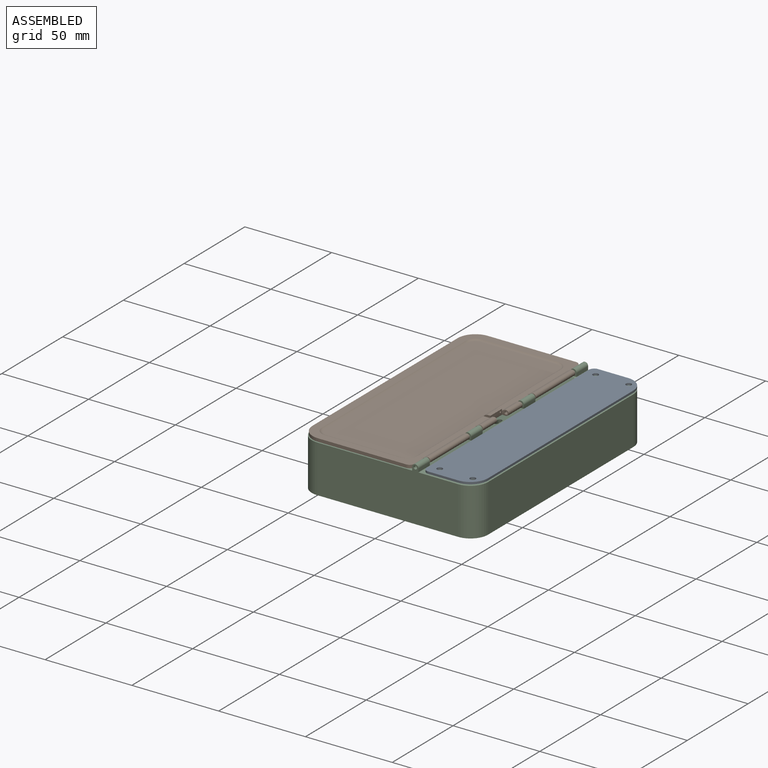
[diagram: assembled view]
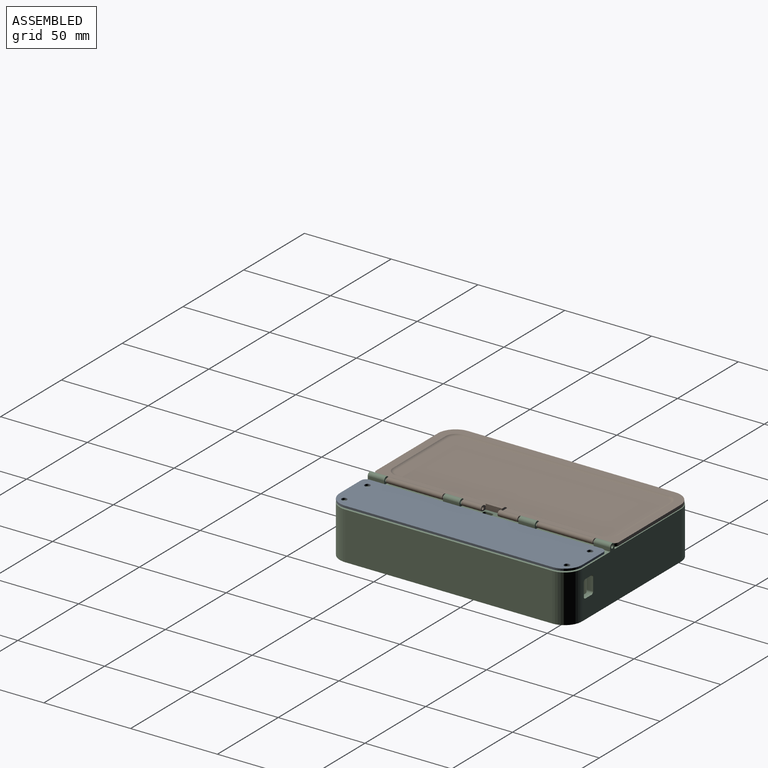
[diagram: assembled view, second angle]
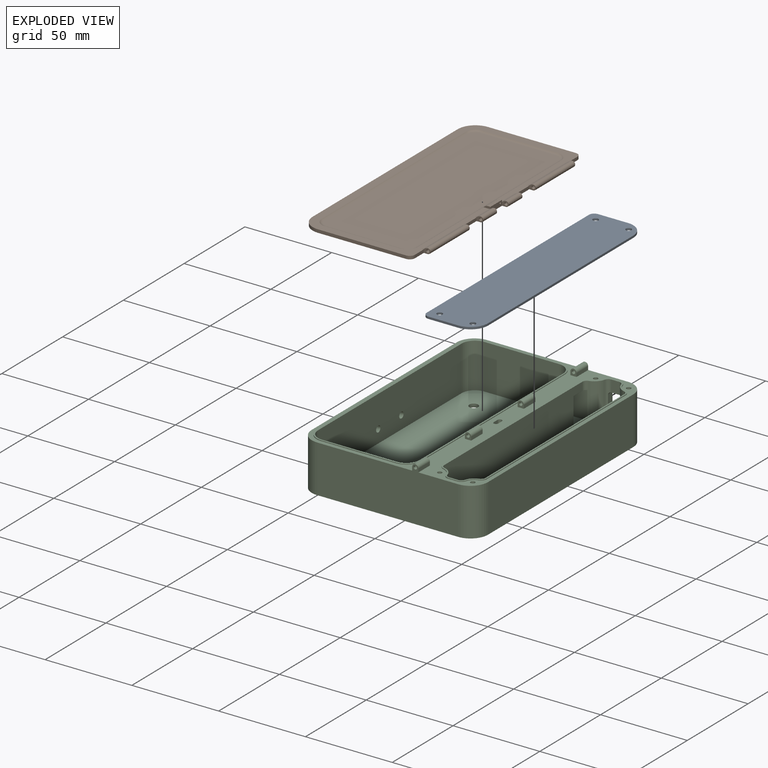
[diagram: exploded view]
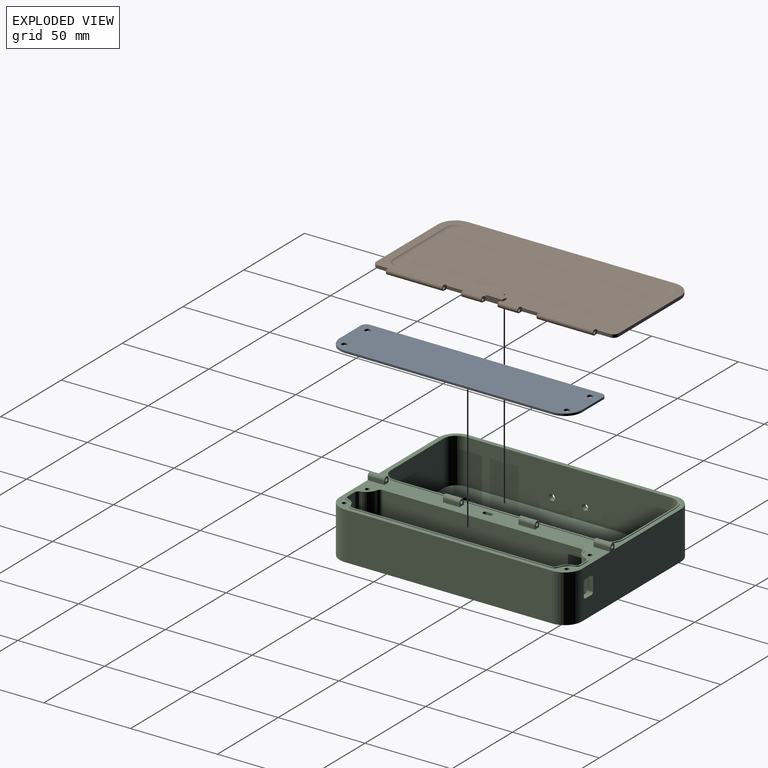
[diagram: exploded view, second angle]
ASSEMBLY  parts=3 mates=2
PART A: 31 faces, bbox 30.5x139.7x2.8 mm
  f0: plane 139.7x30.48mm, normal (0,0,-1), area 1604.4mm2, adj f1,f2,f3,f4,f5,f6,f7,f8
  f1: plane 133.6x1.21mm, normal (-1,0,0), area 161.7mm2, adj f0,f11,f29,f30
  f2: plane 17.27x1.21mm, normal (0,-1,0), area 20.9mm2, adj f0,f3,f11,f30
  f3: cylinder r=10.16mm len=10.16mm, axis (0,0,-1), area 19.3mm2, adj f0,f2,f4,f11
  f4: plane 119.38x1.21mm, normal (1,0,0), area 144.4mm2, adj f0,f3,f5,f11
  f5: cylinder r=10.16mm len=10.16mm, axis (0,0,-1), area 19.3mm2, adj f0,f4,f10,f11
  f6: cylinder r=1.59mm len=3.18mm, axis (0,0,-1), area 12.1mm2, adj f0,f11
  f7: cylinder r=1.59mm len=3.18mm, axis (0,0,-1), area 12.1mm2, adj f0,f11
  f8: cylinder r=1.59mm len=3.18mm, axis (0,0,-1), area 12.1mm2, adj f0,f11
  f9: cylinder r=1.59mm len=3.18mm, axis (0,0,-1), area 12.1mm2, adj f0,f11
  f10: plane 17.27x1.21mm, normal (0,1,0), area 20.9mm2, adj f0,f5,f11,f29
  f11: plane 139.7x30.48mm, normal (0,0,1), area 4178.1mm2, adj f1,f2,f3,f4,f5,f6,f7,f8
  f12: cylinder r=0.95mm len=1.61mm, axis (0,0,1), area 2mm2, adj f0,f13,f27,f28
  f13: cylinder r=9.21mm len=6.61mm, axis (0,0,1), area 15.8mm2, adj f0,f12,f14,f28
  f14: cylinder r=0.95mm len=1.61mm, axis (0,0,1), area 2mm2, adj f0,f13,f15,f28
  f15: plane 4.46x1.61mm, normal (0,1,0), area 7.2mm2, adj f0,f14,f16,f28
  f16: cylinder r=0.95mm len=1.61mm, axis (0,0,1), area 2mm2, adj f0,f15,f17,f28
  f17: cylinder r=9.21mm len=6.61mm, axis (0,0,1), area 15.8mm2, adj f0,f16,f18,f28
  f18: cylinder r=0.95mm len=1.61mm, axis (0,0,1), area 2mm2, adj f0,f17,f19,f28
  f19: plane 113.68x1.61mm, normal (-1,0,0), area 183mm2, adj f0,f18,f20,f28
  f20: cylinder r=0.95mm len=1.61mm, axis (0,0,1), area 2mm2, adj f0,f19,f21,f28
  f21: cylinder r=9.21mm len=6.61mm, axis (0,0,1), area 15.8mm2, adj f0,f20,f22,f28
  f22: cylinder r=0.95mm len=1.61mm, axis (0,0,1), area 2mm2, adj f0,f21,f23,f28
  f23: plane 5.11x1.61mm, normal (0,-1,0), area 8.2mm2, adj f0,f22,f24,f28
  f24: cylinder r=0.95mm len=1.61mm, axis (0,0,1), area 2mm2, adj f0,f23,f25,f28
  f25: cylinder r=8.57mm len=5.98mm, axis (0,0,1), area 14.2mm2, adj f0,f24,f26,f28
  f26: cylinder r=0.95mm len=1.61mm, axis (0,0,1), area 2mm2, adj f0,f25,f27,f28
  f27: plane 114.33x1.61mm, normal (1,0,0), area 184.1mm2, adj f0,f12,f26,f28
  f28: plane 130.18x20.96mm, normal (0,0,-1), area 2573.7mm2, adj f12,f13,f14,f15,f16,f17,f18,f19
  f29: cylinder r=3.05mm len=3.05mm, axis (0,0,1), area 5.8mm2, adj f0,f1,f10,f11
  f30: cylinder r=3.05mm len=3.05mm, axis (0,0,-1), area 5.8mm2, adj f0,f1,f2,f11
PART B: 53 faces, bbox 67.7x139.7x3 mm
  f0: plane 9.53x2.08mm, normal (1,0,0), area 19.2mm2, adj f5,f6,f20,f47,f51,f52
  f1: plane 9.53x0.98mm, normal (1,0,0), area 9.1mm2, adj f22,f23,f24,f47,f51
  f2: cylinder r=2.73mm len=11.4mm, axis (0,-1,0), area 21.8mm2, adj f3,f6,f35,f47
  f3: plane 4.92x3.05mm, normal (0,1,0), area 7.4mm2, adj f2,f12,f19,f20,f30,f35,f47
  f4: plane 4.92x3.05mm, normal (0,-1,0), area 7.4mm2, adj f11,f19,f20,f31,f32,f36,f47
  f5: plane 3.78x3.05mm, normal (0,1,0), area 7.3mm2, adj f0,f20,f31,f32,f36,f47
  f6: plane 3.78x3.05mm, normal (0,-1,0), area 7.3mm2, adj f0,f2,f20,f30,f35,f47
  f7: plane 4.92x3.05mm, normal (0,1,0), area 7.4mm2, adj f11,f19,f20,f28,f29,f34,f38
  f8: plane 4.92x3.05mm, normal (0,1,0), area 7.4mm2, adj f10,f19,f20,f26,f27,f33,f37
  f9: plane 4.92x3.05mm, normal (0,-1,0), area 7.4mm2, adj f12,f19,f20,f26,f27,f33,f37
  f10: plane 7.24x1.81mm, normal (1,0,0), area 13.1mm2, adj f8,f19,f20,f49
  f11: plane 11.05x1.81mm, normal (1,0,0), area 20mm2, adj f4,f7,f19,f20
  f12: plane 11.05x1.81mm, normal (1,0,0), area 20mm2, adj f3,f9,f19,f20
  f13: plane 7.24x1.81mm, normal (1,0,0), area 13.1mm2, adj f19,f20,f25,f50
  f14: plane 50.72x1.81mm, normal (0,1,0), area 91.8mm2, adj f15,f19,f20,f49
  f15: cylinder r=10.16mm len=10.16mm, axis (0,0,-1), area 28.9mm2, adj f14,f16,f19,f20
  f16: plane 119.38x1.81mm, normal (-1,0,0), area 216.1mm2, adj f15,f17,f19,f20
  f17: cylinder r=10.16mm len=10.16mm, axis (0,0,-1), area 28.9mm2, adj f16,f18,f19,f20
  f18: plane 50.72x1.81mm, normal (0,-1,0), area 91.8mm2, adj f17,f19,f20,f50
  f19: plane 139.7x63.92mm, normal (0,0,1), area 1609.7mm2, adj f3,f4,f7,f8,f9,f10,f11,f12
  f20: plane 139.7x66.21mm, normal (0,0,-1), area 9082.2mm2, adj f0,f3,f4,f5,f6,f7,f8,f9
  f21: plane 126.77x51.84mm, normal (0,0,1), area 6555.5mm2, adj f39,f40,f41,f42,f43,f44,f45,f46
  f22: plane 3.98x1.24mm, normal (0,1,0), area 3.9mm2, adj f1,f19,f24,f43,f47,f48
  f23: plane 3.98x1.24mm, normal (0,-1,0), area 3.9mm2, adj f1,f19,f24,f43,f47,f48
  f24: plane 9.53x1.48mm, normal (0,0,1), area 14.1mm2, adj f1,f22,f23,f48
  f25: plane 4.92x3.05mm, normal (0,-1,0), area 7.4mm2, adj f13,f19,f20,f28,f29,f34,f38
  f26: cylinder r=0.89mm len=32.34mm, axis (0,-1,0), area 180.7mm2, adj f8,f9
  f27: cylinder r=2.73mm len=32.34mm, axis (0,-1,0), area 61.8mm2, adj f8,f9,f33,f37
  f28: cylinder r=0.89mm len=32.34mm, axis (0,-1,0), area 180.7mm2, adj f7,f25
  f29: cylinder r=2.73mm len=32.34mm, axis (0,-1,0), area 61.8mm2, adj f7,f25,f34,f38
  f30: cylinder r=0.89mm len=11.4mm, axis (0,-1,0), area 63.7mm2, adj f3,f6
  f31: cylinder r=2.73mm len=11.41mm, axis (0,-1,0), area 21.8mm2, adj f4,f5,f36,f47
  f32: cylinder r=0.89mm len=11.41mm, axis (0,-1,0), area 63.8mm2, adj f4,f5
  f33: cylinder r=1.52mm len=32.34mm, axis (0,-1,0), area 154.8mm2, adj f8,f9,f20,f27
  f34: cylinder r=1.52mm len=32.34mm, axis (0,-1,0), area 154.8mm2, adj f7,f20,f25,f29
  f35: cylinder r=1.52mm len=11.4mm, axis (0,-1,0), area 54.6mm2, adj f2,f3,f6,f20
  f36: cylinder r=1.52mm len=11.41mm, axis (0,-1,0), area 54.6mm2, adj f4,f5,f20,f31
  f37: cylinder r=2.54mm len=32.34mm, axis (0,-1,0), area 57.5mm2, adj f8,f9,f19,f27
  f38: cylinder r=2.54mm len=32.34mm, axis (0,-1,0), area 57.5mm2, adj f7,f19,f25,f29
  f39: cylinder r=2.54mm len=43.18mm, axis (-1,0,0), area 77mm2, adj f19,f21,f40,f41
  f40: torus R=4.33mm, axis (0,0,-1), area 14.5mm2, adj f19,f21,f39,f42
  f41: torus R=4.33mm, axis (0,0,-1), area 14.5mm2, adj f19,f21,f39,f43
  f42: cylinder r=2.54mm len=118.11mm, axis (0,-1,0), area 210.5mm2, adj f19,f21,f40,f44
  f43: cylinder r=2.54mm len=118.11mm, axis (0,1,0), area 212.9mm2, adj f19,f21,f22,f23,f41,f45,f48,f51
  f44: torus R=4.33mm, axis (0,0,-1), area 14.5mm2, adj f19,f21,f42,f46
  f45: torus R=4.33mm, axis (0,0,-1), area 14.5mm2, adj f19,f21,f43,f46
  f46: cylinder r=2.54mm len=43.18mm, axis (1,0,0), area 77mm2, adj f19,f21,f44,f45
  f47: cylinder r=2.54mm len=32.34mm, axis (0,-1,0), area 40.8mm2, adj f0,f1,f2,f3,f4,f5,f6,f19
  f48: cylinder r=3.05mm len=9.53mm, axis (0,1,0), area 23.8mm2, adj f22,f23,f24,f43,f51
  f49: cylinder r=3.05mm len=3.05mm, axis (0,0,-1), area 8.7mm2, adj f10,f14,f19,f20
  f50: cylinder r=3.05mm len=3.05mm, axis (0,0,1), area 8.7mm2, adj f13,f18,f19,f20
  f51: cylinder r=0.51mm len=4.61mm, axis (1,0,0), area 12.5mm2, adj f0,f1,f43,f48,f52
  f52: plane 0.99x0.03mm, normal (0,0,-1), area 0mm2, adj f0,f47,f51
PART C: 116 faces, bbox 101.6x139.7x31.2 mm
  f0: plane 81.28x31.22mm, normal (0,1,0), area 2161.1mm2, adj f13,f17,f21,f23,f24,f29,f88,f92
  f1: cylinder r=2.54mm len=25.81mm, axis (0,0,-1), area 69.9mm2, adj f3,f54,f55,f56,f67,f97,f98,f99
  f2: cylinder r=2.54mm len=25.81mm, axis (0,0,-1), area 69.9mm2, adj f3,f54,f55,f66,f67,f100,f101,f102
  f3: plane 6.76x4.46mm, normal (0,-1,0), area 30.1mm2, adj f1,f2,f54,f103
  f4: cylinder r=2.54mm len=25.81mm, axis (0,0,-1), area 43.6mm2, adj f5,f54,f55,f56,f93,f94,f95
  f5: plane 113.68x25.81mm, normal (1,0,0), area 2817.9mm2, adj f4,f54,f55,f57,f94,f95,f96
  f6: plane 118.11x25.81mm, normal (-1,0,0), area 2897.2mm2, adj f76,f77,f78,f84,f94,f95,f96
  f7: plane 3.81x3.56mm, normal (0,-1,0), area 9.2mm2, adj f13,f17,f21,f88,f92
  f8: plane 3.81x3.56mm, normal (0,-1,0), area 9.2mm2, adj f14,f18,f21,f87,f91
  f9: plane 3.81x3.56mm, normal (0,1,0), area 9.2mm2, adj f14,f18,f21,f87,f91
  f10: plane 3.81x3.56mm, normal (0,-1,0), area 9.2mm2, adj f15,f19,f21,f86,f90
  f11: plane 3.81x3.56mm, normal (0,1,0), area 9.2mm2, adj f15,f19,f21,f86,f90
  f12: plane 3.81x3.56mm, normal (0,1,0), area 9.2mm2, adj f16,f20,f21,f85,f89
  f13: plane 9.53x2.03mm, normal (-1,0,0), area 19.4mm2, adj f0,f7,f21,f88
  f14: plane 9.53x2.03mm, normal (-1,0,0), area 19.4mm2, adj f8,f9,f21,f87
  f15: plane 9.53x2.03mm, normal (-1,0,0), area 19.4mm2, adj f10,f11,f21,f86
  f16: plane 9.53x2.03mm, normal (-1,0,0), area 19.4mm2, adj f12,f21,f27,f85
  f17: plane 9.53x2.03mm, normal (1,0,0), area 19.4mm2, adj f0,f7,f21,f88
  f18: plane 9.53x2.03mm, normal (1,0,0), area 19.4mm2, adj f8,f9,f21,f87
  f19: plane 9.53x2.03mm, normal (1,0,0), area 19.4mm2, adj f10,f11,f21,f86
  f20: plane 9.53x2.03mm, normal (1,0,0), area 19.4mm2, adj f12,f21,f27,f85
  f21: plane 139.7x101.6mm, normal (0,0,1), area 2619.7mm2, adj f0,f7,f8,f9,f10,f11,f12,f13
  f22: plane 119.38x27.41mm, normal (1,0,0), area 3272.2mm2, adj f21,f23,f28,f29
  f23: cylinder r=10.16mm len=27.41mm, axis (0,0,-1), area 437.4mm2, adj f0,f21,f22,f29
  f24: cylinder r=10.16mm len=27.41mm, axis (0,0,-1), area 437.4mm2, adj f0,f21,f25,f29
  f25: plane 119.38x27.41mm, normal (-1,0,0), area 3252.3mm2, adj f21,f24,f26,f29,f114,f115
  f26: cylinder r=10.16mm len=27.41mm, axis (0,0,-1), area 437.4mm2, adj f21,f25,f27,f29
  f27: plane 81.28x31.22mm, normal (0,-1,0), area 2237.1mm2, adj f16,f20,f21,f26,f28,f29,f85,f89
  f28: cylinder r=10.16mm len=27.41mm, axis (0,0,-1), area 437.4mm2, adj f21,f22,f27,f29
  f29: plane 139.7x101.6mm, normal (0,0,-1), area 14023.8mm2, adj f0,f22,f23,f24,f25,f26,f27,f28
  f30: cylinder r=1.27mm len=12.7mm, axis (0,0,1), area 101.3mm2, adj f21,f31
  f31: plane 2.54x2.54mm, normal (0,0,1), area 5.1mm2, adj f30
  f32: cylinder r=1.27mm len=12.7mm, axis (0,0,1), area 101.3mm2, adj f21,f33
  f33: plane 2.54x2.54mm, normal (0,0,1), area 5.1mm2, adj f32
  f34: cylinder r=1.27mm len=12.7mm, axis (0,0,1), area 101.3mm2, adj f21,f35
  f35: plane 2.54x2.54mm, normal (0,0,1), area 5.1mm2, adj f34
  f36: cylinder r=1.27mm len=12.7mm, axis (0,0,1), area 101.3mm2, adj f21,f37
  f37: plane 2.54x2.54mm, normal (0,0,1), area 5.1mm2, adj f36
  f38: cylinder r=3.34mm len=3.24mm, axis (0,0,-1), area 1.8mm2, adj f21,f39,f53,f54
  f39: cylinder r=6.81mm len=4.9mm, axis (0,0,-1), area 3mm2, adj f21,f38,f40,f54
  f40: cylinder r=3.34mm len=3.24mm, axis (0,0,-1), area 1.8mm2, adj f21,f39,f41,f54
  f41: plane 113.68x0.41mm, normal (-1,0,0), area 46.6mm2, adj f21,f40,f42,f54
  f42: cylinder r=3.34mm len=3.24mm, axis (0,0,-1), area 1.8mm2, adj f21,f41,f43,f54
  f43: cylinder r=6.81mm len=4.9mm, axis (0,0,-1), area 3mm2, adj f21,f42,f44,f54
  f44: cylinder r=3.34mm len=3.24mm, axis (0,0,-1), area 1.8mm2, adj f21,f43,f45,f54
  f45: plane 5.11x0.41mm, normal (0,-1,0), area 2.1mm2, adj f21,f44,f46,f54
  f46: cylinder r=3.34mm len=3.22mm, axis (0,0,-1), area 1.8mm2, adj f21,f45,f47,f54
  f47: cylinder r=6.18mm len=4.31mm, axis (0,0,-1), area 2.6mm2, adj f21,f46,f48,f54
  f48: cylinder r=3.34mm len=3.22mm, axis (0,0,-1), area 1.8mm2, adj f21,f47,f49,f54
  f49: plane 114.33x0.41mm, normal (1,0,0), area 46.9mm2, adj f21,f48,f50,f54
  f50: cylinder r=3.34mm len=3.24mm, axis (0,0,-1), area 1.8mm2, adj f21,f49,f51,f54
  f51: cylinder r=6.81mm len=4.9mm, axis (0,0,-1), area 3mm2, adj f21,f50,f52,f54
  f52: cylinder r=3.34mm len=3.24mm, axis (0,0,-1), area 1.8mm2, adj f21,f51,f53,f54
  f53: plane 4.46x0.41mm, normal (0,1,0), area 1.8mm2, adj f21,f38,f52,f54
  f54: plane 134.96x25.74mm, normal (0,0,1), area 240.2mm2, adj f1,f2,f3,f4,f5,f38,f39,f40
  f55: plane 133.35x24.13mm, normal (0,0,1), area 2994.9mm2, adj f1,f2,f4,f5,f56,f57,f58,f59
  f56: cylinder r=7.62mm len=25.81mm, axis (0,0,-1), area 209.5mm2, adj f1,f4,f54,f55
  f57: cylinder r=2.54mm len=25.81mm, axis (0,0,-1), area 86.4mm2, adj f5,f54,f55,f59
  f58: cylinder r=2.54mm len=25.81mm, axis (0,0,-1), area 86.4mm2, adj f54,f55,f59,f61
  f59: cylinder r=7.62mm len=25.81mm, axis (0,0,-1), area 209.5mm2, adj f54,f55,f57,f58
  f60: cylinder r=2.54mm len=25.81mm, axis (0,0,-1), area 85.3mm2, adj f54,f55,f61,f63
  f61: plane 25.81x5.11mm, normal (0,1,0), area 132mm2, adj f54,f55,f58,f60
  f62: cylinder r=2.54mm len=25.81mm, axis (0,0,-1), area 85.3mm2, adj f54,f55,f63,f65
  f63: cylinder r=6.99mm len=25.81mm, axis (0,0,-1), area 185.9mm2, adj f54,f55,f60,f62
  f64: cylinder r=2.54mm len=25.81mm, axis (0,0,-1), area 86.4mm2, adj f54,f55,f65,f66
  f65: plane 114.33x25.81mm, normal (-1,0,0), area 2950.9mm2, adj f54,f55,f62,f64
  f66: cylinder r=7.62mm len=25.81mm, axis (0,0,-1), area 209.5mm2, adj f2,f54,f55,f64
  f67: plane 8.89x4.46mm, normal (0,-1,0), area 39.6mm2, adj f1,f2,f55,f104
  f68: plane 43.18x0.41mm, normal (0,1,0), area 17.7mm2, adj f21,f69,f75,f76
  f69: cylinder r=8.43mm len=8.43mm, axis (0,0,-1), area 5.4mm2, adj f21,f68,f70,f76
  f70: plane 118.11x0.41mm, normal (-1,0,0), area 48.4mm2, adj f21,f69,f71,f76
  f71: cylinder r=8.43mm len=8.43mm, axis (0,0,-1), area 5.4mm2, adj f21,f70,f72,f76
  f72: plane 43.18x0.41mm, normal (0,-1,0), area 17.7mm2, adj f21,f71,f73,f76
  f73: cylinder r=8.43mm len=8.43mm, axis (0,0,-1), area 5.4mm2, adj f21,f72,f74,f76
  f74: plane 118.11x0.41mm, normal (1,0,0), area 48.4mm2, adj f21,f73,f75,f76
  f75: cylinder r=8.43mm len=8.43mm, axis (0,0,-1), area 5.4mm2, adj f21,f68,f74,f76
  f76: plane 134.96x60.03mm, normal (0,0,1), area 300.3mm2, adj f6,f68,f69,f70,f71,f72,f73,f74
  f77: plane 133.35x58.42mm, normal (0,0,1), area 7699.9mm2, adj f6,f78,f79,f80,f81,f82,f83,f84
  f78: cylinder r=7.62mm len=25.81mm, axis (0,0,-1), area 308.9mm2, adj f6,f76,f77,f79,f93
  f79: plane 43.18x25.81mm, normal (0,-1,0), area 1114.5mm2, adj f76,f77,f78,f80
  f80: cylinder r=7.62mm len=25.81mm, axis (0,0,-1), area 308.9mm2, adj f76,f77,f79,f81
  f81: plane 118.11x25.81mm, normal (1,0,0), area 3028.6mm2, adj f76,f77,f80,f82,f114,f115
  f82: cylinder r=7.62mm len=25.81mm, axis (0,0,-1), area 308.9mm2, adj f76,f77,f81,f83
  f83: plane 43.18x25.81mm, normal (0,1,0), area 1114.5mm2, adj f76,f77,f82,f84
  f84: cylinder r=7.62mm len=25.81mm, axis (0,0,-1), area 308.9mm2, adj f6,f76,f77,f83
  f85: cylinder r=1.78mm len=9.53mm, axis (0,-1,0), area 53.2mm2, adj f12,f16,f20,f27
  f86: cylinder r=1.78mm len=9.53mm, axis (0,-1,0), area 53.2mm2, adj f10,f11,f15,f19
  f87: cylinder r=1.78mm len=9.53mm, axis (0,-1,0), area 53.2mm2, adj f8,f9,f14,f18
  f88: cylinder r=1.78mm len=9.53mm, axis (0,-1,0), area 53.2mm2, adj f0,f7,f13,f17
  f89: cylinder r=0.97mm len=9.53mm, axis (0,-1,0), area 57.9mm2, adj f12,f27
  f90: cylinder r=0.97mm len=9.53mm, axis (0,-1,0), area 57.9mm2, adj f10,f11
  f91: cylinder r=0.97mm len=9.53mm, axis (0,-1,0), area 57.9mm2, adj f8,f9
  f92: cylinder r=0.97mm len=9.53mm, axis (0,-1,0), area 57.9mm2, adj f0,f7
  f93: plane 15.88x14mm, normal (0,-1,0), area 222.3mm2, adj f4,f78,f94,f95
  f94: plane 14x9.53mm, normal (0,0,-1), area 121.8mm2, adj f4,f5,f6,f93,f96
  f95: plane 14x9.53mm, normal (0,0,1), area 121.8mm2, adj f4,f5,f6,f93,f96
  f96: plane 15.88x12.7mm, normal (0,1,0), area 201.6mm2, adj f5,f6,f94,f95
  f97: plane 7.62x3.73mm, normal (1,0,0), area 28.4mm2, adj f0,f1,f98,f99
  f98: cylinder r=1.27mm len=3.73mm, axis (0,1,0), area 6.9mm2, adj f0,f1,f97,f103
  f99: cylinder r=1.27mm len=3.73mm, axis (0,1,0), area 6.9mm2, adj f0,f1,f97,f104
  f100: cylinder r=1.27mm len=3.73mm, axis (0,1,0), area 6.9mm2, adj f0,f2,f101,f103
  f101: plane 7.62x3.73mm, normal (-1,0,0), area 28.4mm2, adj f0,f2,f100,f102
  f102: cylinder r=1.27mm len=3.73mm, axis (0,1,0), area 6.9mm2, adj f0,f2,f101,f104
  f103: plane 5.08x3.19mm, normal (0,0,-1), area 16.1mm2, adj f0,f1,f2,f3,f98,f100
  f104: plane 5.08x3.19mm, normal (0,0,1), area 16.1mm2, adj f0,f1,f2,f67,f99,f102
  f105: cylinder r=1.27mm len=10.16mm, axis (0,0,1), area 40.5mm2, adj f21,f106,f108,f109
  f106: plane 10.16x3.18mm, normal (-1,0,0), area 32.3mm2, adj f21,f105,f107,f109
  f107: cylinder r=1.27mm len=10.16mm, axis (0,0,1), area 40.5mm2, adj f21,f106,f108,f109
  f108: plane 10.16x3.18mm, normal (1,0,0), area 32.3mm2, adj f21,f105,f107,f109
  f109: plane 5.72x2.54mm, normal (0,0,1), area 13.1mm2, adj f105,f106,f107,f108
  f110: cylinder r=2.54mm len=5.08mm, axis (0,0,-1), area 32.1mm2, adj f29,f77
  f111: cylinder r=2.54mm len=5.08mm, axis (0,0,-1), area 32.1mm2, adj f29,f77
  f112: cylinder r=2.54mm len=5.08mm, axis (0,0,-1), area 32.1mm2, adj f29,f55
  f113: cylinder r=2.54mm len=5.08mm, axis (0,0,-1), area 32.1mm2, adj f29,f55
  f114: cylinder r=1.78mm len=3.56mm, axis (-1,0,0), area 35.5mm2, adj f25,f81
  f115: cylinder r=1.78mm len=3.56mm, axis (-1,0,0), area 35.5mm2, adj f25,f81
PLACE A t=(-7.13,-30.49,-20.79)mm
PLACE B t=(-6.62,-30.49,-21.08)mm
PLACE C t=(-7.13,-30.49,3.82)mm fixed
MATE fastened A.f9 <-> C.f36  axis (0,0,-1) through (88.76,103.49,30.01)mm
MATE revolute B.f26 <-> C.f85  axis (0,-1,0) through (59.59,-20.2,31.25)mm
